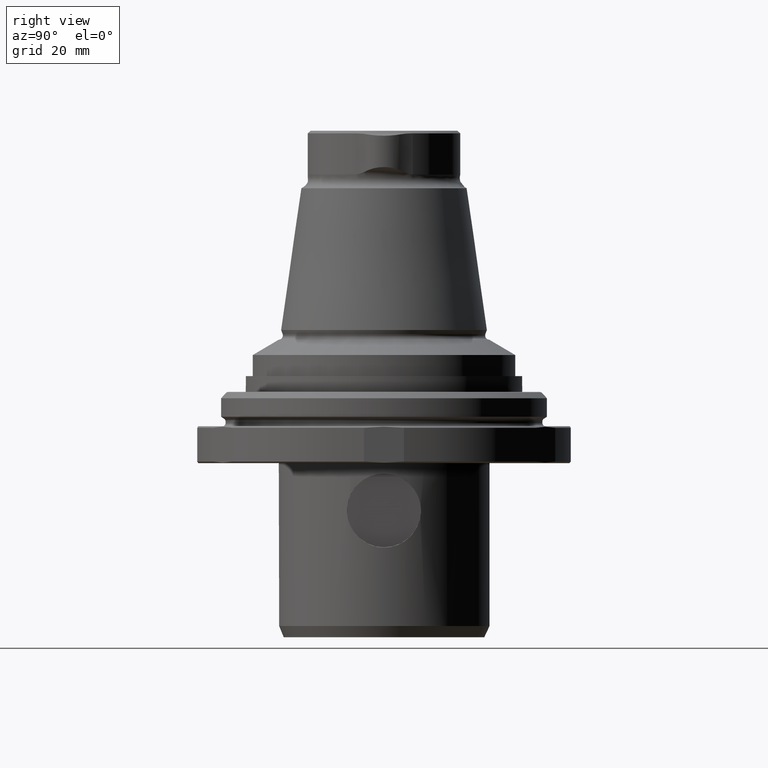
[diagram: clean part render]
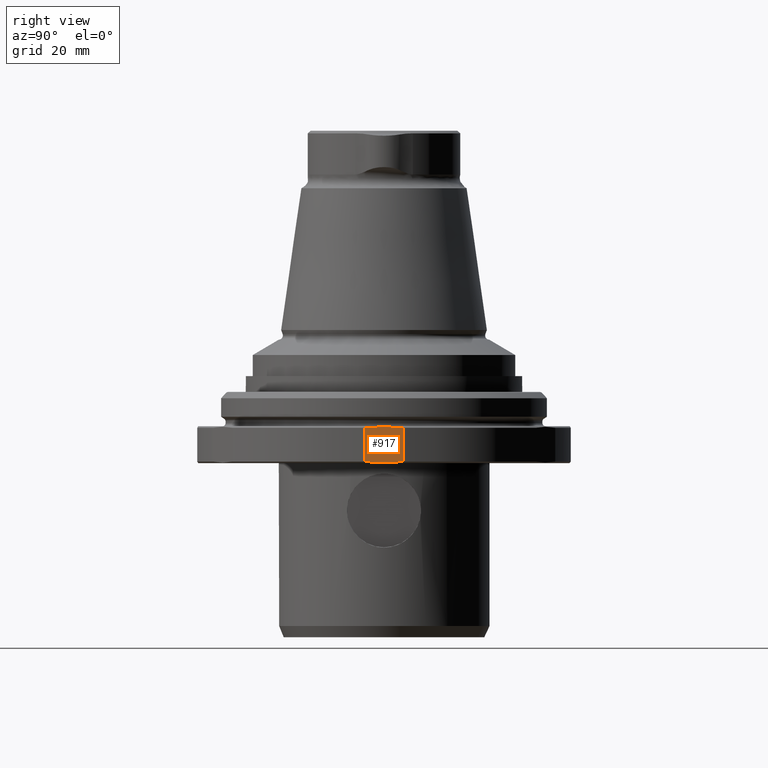
[diagram: same view with one face highlighted and labeled with its STEP entity id]
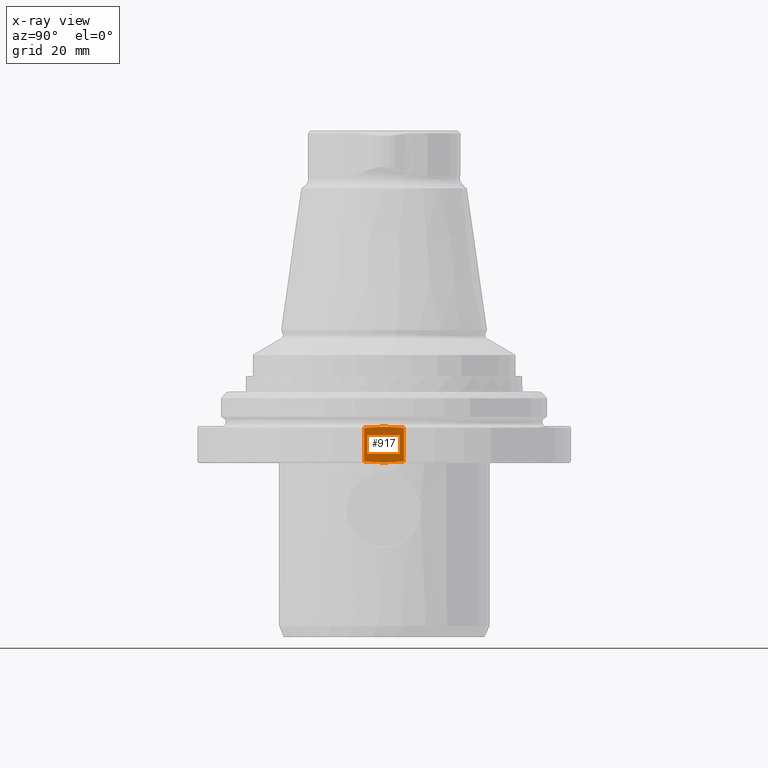
[diagram: x-ray of the same camera — body ghosted, the highlighted face saturated]
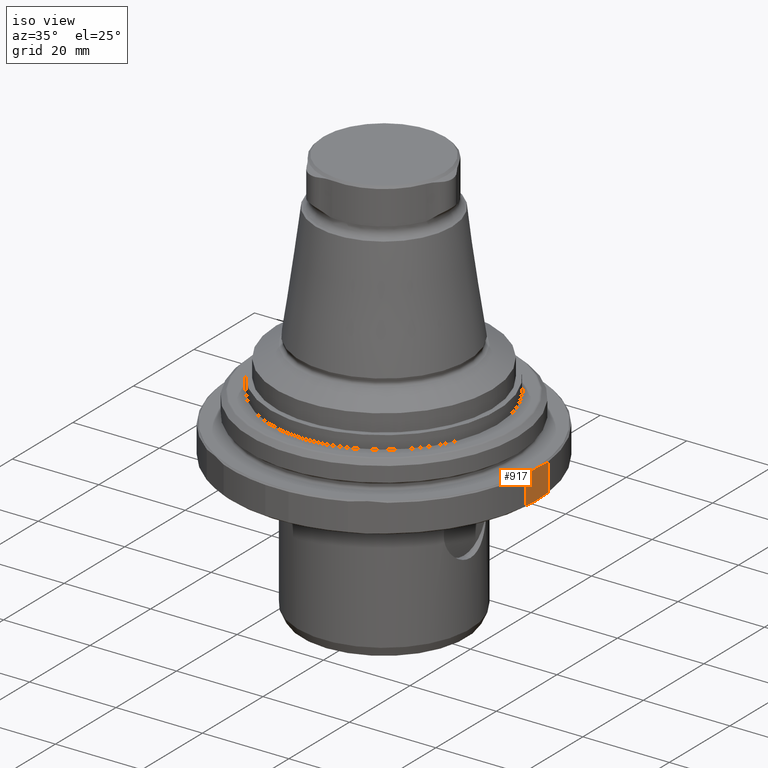
[diagram: same view with one face highlighted and labeled with its STEP entity id]
A machine part, right view. The second image highlights one B-rep face of the part: STEP entity #917.
The next image is the same camera in x-ray: the body ghosted, the highlighted face saturated — about 0% of this face is hidden behind the body in this view.
A second angle (iso view) of the same face is appended — the face is thin or edge-on in the first view.
In plain terms, the highlighted planar face has unit normal (-1, 0, 0).
Its self-contained STEP definition (entity closure, byte-faithful):
#36=LINE('',#1569,#64);
#37=LINE('',#1572,#65);
#64=VECTOR('',#1196,1000.);
#65=VECTOR('',#1201,1000.);
#85=B_SPLINE_CURVE_WITH_KNOTS('',3,(#1459,#1460,#1461,#1462),
 .UNSPECIFIED.,.F.,.F.,(4,4),(0.00301971742095615,0.0105389064051034),
 .UNSPECIFIED.);
#97=B_SPLINE_CURVE_WITH_KNOTS('',3,(#1541,#1542,#1543,#1544),
 .UNSPECIFIED.,.F.,.F.,(4,4),(0.0142564267081391,0.0217467200872314),
 .UNSPECIFIED.);
#263=ORIENTED_EDGE('',*,*,#472,.F.);
#264=ORIENTED_EDGE('',*,*,#460,.F.);
#265=ORIENTED_EDGE('',*,*,#471,.F.);
#266=ORIENTED_EDGE('',*,*,#436,.F.);
#436=EDGE_CURVE('',#561,#562,#85,.T.);
#460=EDGE_CURVE('',#581,#582,#97,.T.);
#471=EDGE_CURVE('',#562,#581,#36,.T.);
#472=EDGE_CURVE('',#582,#561,#37,.F.);
#561=VERTEX_POINT('',#1458);
#562=VERTEX_POINT('',#1463);
#581=VERTEX_POINT('',#1540);
#582=VERTEX_POINT('',#1545);
#718=EDGE_LOOP('',(#263,#264,#265,#266));
#814=FACE_BOUND('',#718,.T.);
#888=PLANE('',#1021);
#917=ADVANCED_FACE('',(#814),#888,.F.);
#1021=AXIS2_PLACEMENT_3D('',#1574,#1203,#1204);
#1196=DIRECTION('',(-5.47430718319515E-16,-9.52839907700963E-18,-1.));
#1201=DIRECTION('',(-5.47430718319515E-16,-9.52839907700963E-18,-1.));
#1203=DIRECTION('',(-1.,9.55131948383603E-16,5.47430716006892E-16));
#1204=DIRECTION('',(-5.47430718319515E-16,-9.52839907700963E-18,-1.));
#1458=CARTESIAN_POINT('',(35.2999999999999,-3.76297754444549,-1.30000000000001));
#1459=CARTESIAN_POINT('',(35.2999999999999,-3.76297754444549,-1.30000000000001));
#1460=CARTESIAN_POINT('',(35.2999999999999,-1.26556050101696,-1.03527537313981));
#1461=CARTESIAN_POINT('',(35.2999999999999,1.24362282730948,-1.03294999360354));
#1462=CARTESIAN_POINT('',(35.2999999999999,3.76297754444523,-1.30000000000001));
#1463=CARTESIAN_POINT('',(35.2999999999999,3.76297754444523,-1.30000000000001));
#1540=CARTESIAN_POINT('',(35.2999999999999,3.76297754444523,-7.70000000000001));
#1541=CARTESIAN_POINT('',(35.2999999999999,3.76297754444523,-7.70000000000002));
#1542=CARTESIAN_POINT('',(35.2999999999999,1.24362282730948,-7.96705000639648));
#1543=CARTESIAN_POINT('',(35.2999999999999,-1.26556050101697,-7.96472462686021));
#1544=CARTESIAN_POINT('',(35.2999999999999,-3.76297754444551,-7.70000000000001));
#1545=CARTESIAN_POINT('',(35.2999999999999,-3.76297754444549,-7.70000000000001));
#1569=CARTESIAN_POINT('',(35.2999999999999,3.76297754444523,-1.00000000000001));
#1572=CARTESIAN_POINT('',(35.2999999999999,-3.76297754444549,-1.00000000000001));
#1574=CARTESIAN_POINT('',(35.2999999999999,-1.31914042377389E-13,-4.5));